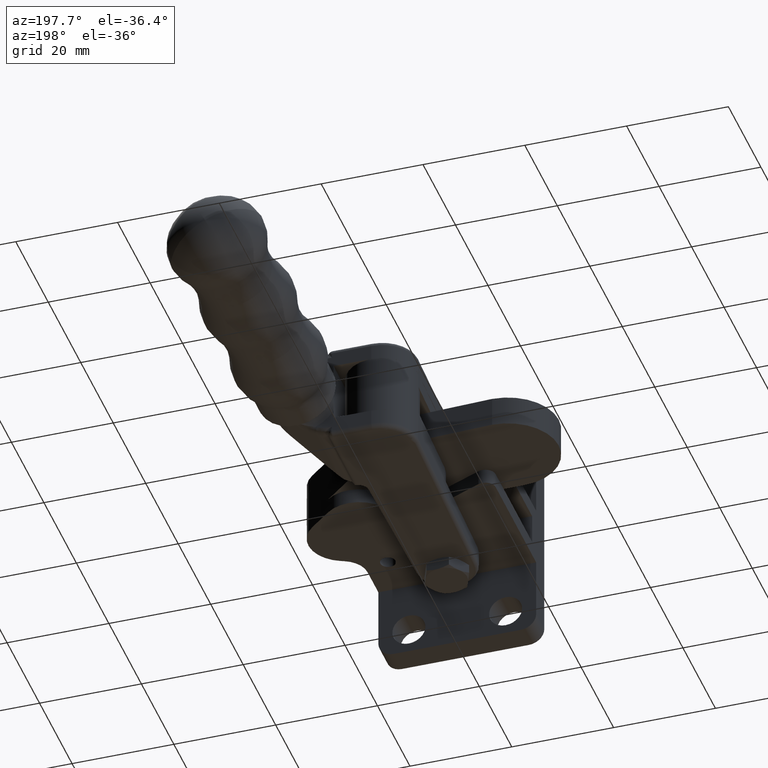
[diagram: clean part render]
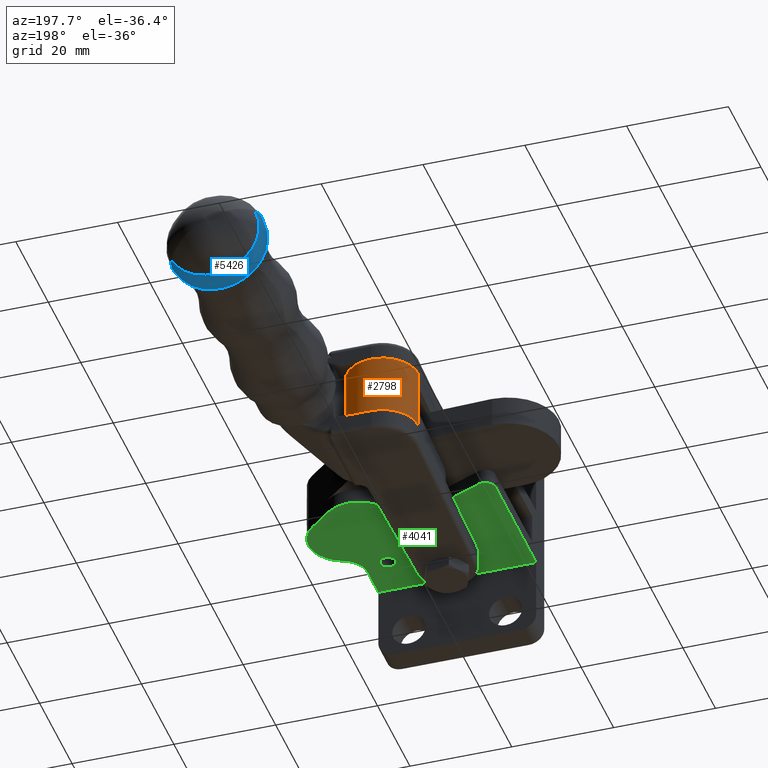
[diagram: same view with three faces highlighted in distinct colors, each labeled with its STEP entity id]
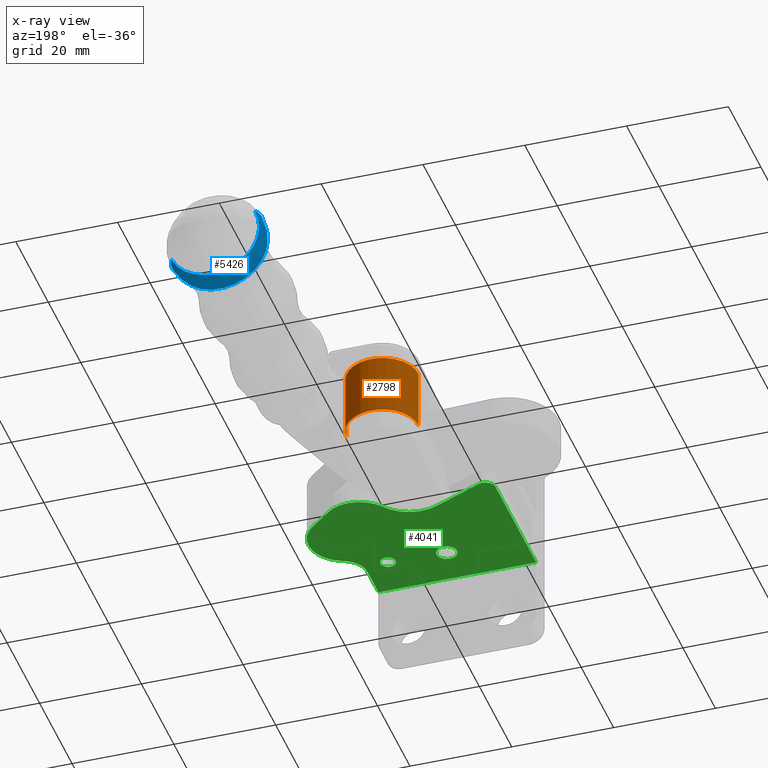
[diagram: x-ray of the same camera — body ghosted, the three highlighted faces saturated]
A machine part, auxiliary view with three faces highlighted in distinct colors.
The next image is the same camera in x-ray (body ghosted, the three faces saturated) — at least one of them is partly hidden behind the body in this view.
Their STEP definitions:

[orange] entity #2798 — the highlighted cylindrical surface (partial cylindrical patch) has radius 7 mm, axis along (0, 0, -1).
#8 = AXIS2_PLACEMENT_3D ( 'NONE', #5089, #902, #5813 ) ;
#15 = CARTESIAN_POINT ( 'NONE',  ( -7.132921286705149000, 39.76374855933703100, -4.500000000000000900 ) ) ;
#17 = LINE ( 'NONE', #4083, #3736 ) ;
#415 = DIRECTION ( 'NONE',  ( -4.366125978806254100E-022, -1.000783505723065100E-022, 1.000000000000000000 ) ) ;
#473 = VECTOR ( 'NONE', #5986, 1000.000000000000000 ) ;
#529 = VERTEX_POINT ( 'NONE', #5708 ) ;
#567 = VECTOR ( 'NONE', #5771, 1000.000000000000000 ) ;
#602 = EDGE_CURVE ( 'NONE', #1839, #6641, #4299, .T. ) ;
#673 = CIRCLE ( 'NONE', #3179, 6.999999999999999100 ) ;
#902 = DIRECTION ( 'NONE',  ( -8.764646601570541500E-022, 1.711275539145676600E-021, 1.000000000000000000 ) ) ;
#924 = VERTEX_POINT ( 'NONE', #4396 ) ;
#942 = ORIENTED_EDGE ( 'NONE', *, *, #1591, .F. ) ;
#1083 = CARTESIAN_POINT ( 'NONE',  ( -7.132921286705143700, 39.76374855933703100, -3.000000000000000000 ) ) ;
#1384 = CARTESIAN_POINT ( 'NONE',  ( -7.132921286705149900, 39.76374855933703100, 3.000000000000000000 ) ) ;
#1488 = EDGE_CURVE ( 'NONE', #924, #8030, #2526, .T. ) ;
#1547 = EDGE_CURVE ( 'NONE', #5807, #7323, #3945, .T. ) ;
#1591 = EDGE_CURVE ( 'NONE', #2927, #529, #7407, .T. ) ;
#1839 = VERTEX_POINT ( 'NONE', #8703 ) ;
#1879 = AXIS2_PLACEMENT_3D ( 'NONE', #8569, #7123, #2313 ) ;
#2044 = CARTESIAN_POINT ( 'NONE',  ( -0.1369012826165858200, 39.99976572479905500, -6.000000000000000000 ) ) ;
#2303 = VECTOR ( 'NONE', #415, 1000.000000000000000 ) ;
#2313 = DIRECTION ( 'NONE',  ( -0.9994314291555083100, -0.03371673792314630600, 0.0000000000000000000 ) ) ;
#2464 = EDGE_LOOP ( 'NONE', ( #942, #3294, #4874, #6507, #3534, #4002, #8714, #5733 ) ) ;
#2526 = LINE ( 'NONE', #15, #6248 ) ;
#2748 = DIRECTION ( 'NONE',  ( -0.9994314291555083100, -0.03371673792314630600, 0.0000000000000000000 ) ) ;
#2798 = ADVANCED_FACE ( 'NONE', ( #6002 ), #8601, .T. ) ;
#2816 = DIRECTION ( 'NONE',  ( -8.764646601570541500E-022, 1.711275539145676600E-021, 1.000000000000000000 ) ) ;
#2927 = VERTEX_POINT ( 'NONE', #6775 ) ;
#3179 = AXIS2_PLACEMENT_3D ( 'NONE', #2044, #6905, #2748 ) ;
#3204 = CARTESIAN_POINT ( 'NONE',  ( 6.859118721568795400, 40.23578288739126700, 4.500000000000000000 ) ) ;
#3294 = ORIENTED_EDGE ( 'NONE', *, *, #6552, .T. ) ;
#3309 = CARTESIAN_POINT ( 'NONE',  ( 6.859118721471973300, 40.23578289026108500, -3.000000000000000000 ) ) ;
#3438 = CIRCLE ( 'NONE', #8, 7.000000000000000900 ) ;
#3534 = ORIENTED_EDGE ( 'NONE', *, *, #1488, .F. ) ;
#3736 = VECTOR ( 'NONE', #8967, 1000.000000000000000 ) ;
#3945 = LINE ( 'NONE', #4623, #2303 ) ;
#4002 = ORIENTED_EDGE ( 'NONE', *, *, #5181, .F. ) ;
#4083 = CARTESIAN_POINT ( 'NONE',  ( 6.859118721471972400, 40.23578289026108500, -3.000000000000000000 ) ) ;
#4161 = DIRECTION ( 'NONE',  ( 4.366125978806254100E-022, 1.000783505723065100E-022, -1.000000000000000000 ) ) ;
#4299 = LINE ( 'NONE', #4390, #567 ) ;
#4390 = CARTESIAN_POINT ( 'NONE',  ( -7.132921286705149900, 39.76374855933703100, 4.500000000000000000 ) ) ;
#4396 = CARTESIAN_POINT ( 'NONE',  ( -7.132921286705149000, 39.76374855933703100, -3.000000000000000000 ) ) ;
#4623 = CARTESIAN_POINT ( 'NONE',  ( 6.859118721568794500, 40.23578288739126700, -4.500000000000000900 ) ) ;
#4874 = ORIENTED_EDGE ( 'NONE', *, *, #1547, .F. ) ;
#5089 = CARTESIAN_POINT ( 'NONE',  ( -0.1369012826165859300, 39.99976572479905500, 6.000000000000000000 ) ) ;
#5126 = EDGE_CURVE ( 'NONE', #529, #1839, #3438, .T. ) ;
#5181 = EDGE_CURVE ( 'NONE', #6641, #924, #5861, .T. ) ;
#5371 = VECTOR ( 'NONE', #2816, 1000.000000000000000 ) ;
#5708 = CARTESIAN_POINT ( 'NONE',  ( 6.859118721520391500, 40.23578288882617900, 6.000000000000000000 ) ) ;
#5733 = ORIENTED_EDGE ( 'NONE', *, *, #5126, .F. ) ;
#5771 = DIRECTION ( 'NONE',  ( 8.764646601570541500E-022, -1.711275539145676600E-021, -1.000000000000000000 ) ) ;
#5807 = VERTEX_POINT ( 'NONE', #8700 ) ;
#5813 = DIRECTION ( 'NONE',  ( -0.9994314291555082000, -0.03371673792314629900, 0.0000000000000000000 ) ) ;
#5861 = LINE ( 'NONE', #1083, #473 ) ;
#5986 = DIRECTION ( 'NONE',  ( 4.366125978806254100E-022, 1.000783505723065100E-022, -1.000000000000000000 ) ) ;
#6002 = FACE_OUTER_BOUND ( 'NONE', #2464, .T. ) ;
#6049 = EDGE_CURVE ( 'NONE', #5807, #8030, #673, .T. ) ;
#6248 = VECTOR ( 'NONE', #4161, 1000.000000000000000 ) ;
#6507 = ORIENTED_EDGE ( 'NONE', *, *, #6049, .T. ) ;
#6552 = EDGE_CURVE ( 'NONE', #2927, #7323, #17, .T. ) ;
#6641 = VERTEX_POINT ( 'NONE', #1384 ) ;
#6775 = CARTESIAN_POINT ( 'NONE',  ( 6.859118721520380800, 40.23578288882617900, 2.999999999999999100 ) ) ;
#6905 = DIRECTION ( 'NONE',  ( -4.366125978806254100E-022, -1.000783505723065100E-022, 1.000000000000000000 ) ) ;
#7123 = DIRECTION ( 'NONE',  ( 4.366125978806254100E-022, 1.000783505723065100E-022, -1.000000000000000000 ) ) ;
#7323 = VERTEX_POINT ( 'NONE', #3309 ) ;
#7407 = LINE ( 'NONE', #3204, #5371 ) ;
#8030 = VERTEX_POINT ( 'NONE', #8727 ) ;
#8569 = CARTESIAN_POINT ( 'NONE',  ( -0.1369012826165858200, 39.99976572479905500, -3.000000000000000000 ) ) ;
#8601 = CYLINDRICAL_SURFACE ( 'NONE', #1879, 6.999999999999999100 ) ;
#8700 = CARTESIAN_POINT ( 'NONE',  ( 6.859118721520390600, 40.23578288882617200, -6.000000000000000000 ) ) ;
#8703 = CARTESIAN_POINT ( 'NONE',  ( -7.132921286705149900, 39.76374855933703100, 6.000000000000000000 ) ) ;
#8714 = ORIENTED_EDGE ( 'NONE', *, *, #602, .F. ) ;
#8727 = CARTESIAN_POINT ( 'NONE',  ( -7.132921286705149000, 39.76374855933703100, -6.000000000000000000 ) ) ;
#8967 = DIRECTION ( 'NONE',  ( 4.366125978806254100E-022, 1.000783505723065100E-022, -1.000000000000000000 ) ) ;

[blue] entity #5426 — the highlighted toroidal blend (fillet) surface has major radius 4.7149 mm and minor (blend) radius 5 mm.
#101 = DIRECTION ( 'NONE',  ( -0.9044394459772414600, -0.003095491135002418700, 0.4265907951362920000 ) ) ;
#237 = AXIS2_PLACEMENT_3D ( 'NONE', #6943, #2784, #7651 ) ;
#407 = EDGE_CURVE ( 'NONE', #2822, #5552, #1229, .T. ) ;
#441 = AXIS2_PLACEMENT_3D ( 'NONE', #3772, #7199, #1837 ) ;
#588 = AXIS2_PLACEMENT_3D ( 'NONE', #2855, #4289, #101 ) ;
#1019 = EDGE_CURVE ( 'NONE', #5552, #1518, #3515, .T. ) ;
#1148 = AXIS2_PLACEMENT_3D ( 'NONE', #5611, #1417, #6311 ) ;
#1229 = CIRCLE ( 'NONE', #1148, 4.999999999999973400 ) ;
#1336 = CARTESIAN_POINT ( 'NONE',  ( 13.74358511268594900, 96.50798547102671400, 22.72657495178282300 ) ) ;
#1417 = DIRECTION ( 'NONE',  ( 0.4265882966451868300, 0.001460020675164394300, 0.9044447432015879600 ) ) ;
#1432 = ORIENTED_EDGE ( 'NONE', *, *, #5670, .T. ) ;
#1518 = VERTEX_POINT ( 'NONE', #3123 ) ;
#1593 = ORIENTED_EDGE ( 'NONE', *, *, #1019, .F. ) ;
#1837 = DIRECTION ( 'NONE',  ( -0.9044394459772414600, -0.003095491135002114700, 0.4265907951362918900 ) ) ;
#1959 = ORIENTED_EDGE ( 'NONE', *, *, #407, .F. ) ;
#2037 = DIRECTION ( 'NONE',  ( -0.9044394459772412400, -0.003095491135002367500, 0.4265907951362922200 ) ) ;
#2468 = EDGE_LOOP ( 'NONE', ( #1959, #3891, #1432, #1593 ) ) ;
#2784 = DIRECTION ( 'NONE',  ( -0.4265882966451869400, -0.001460020675164394700, -0.9044447432015879600 ) ) ;
#2822 = VERTEX_POINT ( 'NONE', #3723 ) ;
#2855 = CARTESIAN_POINT ( 'NONE',  ( 13.73707456712001500, 98.41023424766795800, 22.72657495178282300 ) ) ;
#3123 = CARTESIAN_POINT ( 'NONE',  ( 5.542717527440721900, 100.8723113742877900, 26.58753180337485800 ) ) ;
#3152 = AXIS2_PLACEMENT_3D ( 'NONE', #1336, #6229, #2037 ) ;
#3201 = CIRCLE ( 'NONE', #237, 4.999999999999971600 ) ;
#3515 = CIRCLE ( 'NONE', #441, 9.050727056495613700 ) ;
#3707 = CARTESIAN_POINT ( 'NONE',  ( 21.91438665677705400, 100.9283442650252000, 18.86561810019078700 ) ) ;
#3723 = CARTESIAN_POINT ( 'NONE',  ( 22.19006134583334600, 96.53689397608805200, 18.74268301913396000 ) ) ;
#3772 = CARTESIAN_POINT ( 'NONE',  ( 13.72855209210889000, 100.9003278196565000, 22.72657495178282300 ) ) ;
#3891 = ORIENTED_EDGE ( 'NONE', *, *, #8364, .T. ) ;
#4289 = DIRECTION ( 'NONE',  ( -0.003422532065413858600, 0.9999941431199791400, -4.519185069842600200E-017 ) ) ;
#4485 = CIRCLE ( 'NONE', #3152, 9.338907398074619300 ) ;
#4515 = VERTEX_POINT ( 'NONE', #5339 ) ;
#4647 = TOROIDAL_SURFACE ( 'NONE', #588, 4.714904023880018600, 4.999999999999971600 ) ;
#5339 = CARTESIAN_POINT ( 'NONE',  ( 5.297108879538552800, 96.47907696596536200, 26.71046688443168900 ) ) ;
#5426 = ADVANCED_FACE ( 'NONE', ( #7126 ), #4647, .T. ) ;
#5552 = VERTEX_POINT ( 'NONE', #3707 ) ;
#5611 = CARTESIAN_POINT ( 'NONE',  ( 18.00141975031392500, 98.42482919127626000, 20.71524029524454500 ) ) ;
#5670 = EDGE_CURVE ( 'NONE', #4515, #1518, #3201, .T. ) ;
#6229 = DIRECTION ( 'NONE',  ( -0.003422532065413858600, 0.9999941431199791400, -4.519185069842600200E-017 ) ) ;
#6311 = DIRECTION ( 'NONE',  ( 0.9044457071876378400, 0.0000000000000000000, -0.4265887513165972900 ) ) ;
#6943 = CARTESIAN_POINT ( 'NONE',  ( 9.472729383926104400, 98.39563930405964200, 24.73790960832110000 ) ) ;
#7126 = FACE_OUTER_BOUND ( 'NONE', #2468, .T. ) ;
#7199 = DIRECTION ( 'NONE',  ( -0.003422532065413858600, 0.9999941431199791400, -4.519185069842600200E-017 ) ) ;
#7651 = DIRECTION ( 'NONE',  ( -0.9044457071876378400, 0.0000000000000000000, 0.4265887513165974000 ) ) ;
#8364 = EDGE_CURVE ( 'NONE', #2822, #4515, #4485, .T. ) ;

[green] entity #4041 — the highlighted planar face has unit normal (0, 0, 1).
#173 = DIRECTION ( 'NONE',  ( -0.9230769232100591900, -0.3846153842958580600, 0.0000000000000000000 ) ) ;
#215 = CARTESIAN_POINT ( 'NONE',  ( -14.99999999999994000, -7.999999998202009800, -6.000000003999997700 ) ) ;
#216 = LINE ( 'NONE', #8545, #2517 ) ;
#224 = CARTESIAN_POINT ( 'NONE',  ( -2.720337220968156000, 14.66351940551041200, -6.000000000000001800 ) ) ;
#263 = DIRECTION ( 'NONE',  ( -1.000000000000000000, -3.469446951953615000E-015, 0.0000000000000000000 ) ) ;
#421 = VERTEX_POINT ( 'NONE', #9052 ) ;
#486 = DIRECTION ( 'NONE',  ( -1.000000000000000000, 0.0000000000000000000, 0.0000000000000000000 ) ) ;
#605 = VERTEX_POINT ( 'NONE', #2974 ) ;
#624 = VERTEX_POINT ( 'NONE', #215 ) ;
#749 = CIRCLE ( 'NONE', #1930, 2.000000000000000400 ) ;
#799 = CARTESIAN_POINT ( 'NONE',  ( 2.000000000000060400, -9.887923813067800400E-014, -6.000000000000000000 ) ) ;
#806 = CARTESIAN_POINT ( 'NONE',  ( 11.40000000000005900, 0.4999999999998998600, -6.000000000000001800 ) ) ;
#927 = CARTESIAN_POINT ( 'NONE',  ( 21.00000000000006000, -1.333333333000098700, -6.000000000000001800 ) ) ;
#1158 = AXIS2_PLACEMENT_3D ( 'NONE', #8534, #1978, #1755 ) ;
#1162 = ORIENTED_EDGE ( 'NONE', *, *, #5292, .T. ) ;
#1515 = CARTESIAN_POINT ( 'NONE',  ( 16.00000000000006000, -1.333333333000098700, -6.000000002999999400 ) ) ;
#1516 = ORIENTED_EDGE ( 'NONE', *, *, #7308, .F. ) ;
#1524 = DIRECTION ( 'NONE',  ( -1.000000000000000000, 0.0000000000000000000, 0.0000000000000000000 ) ) ;
#1619 = CIRCLE ( 'NONE', #8412, 2.000000000000000400 ) ;
#1631 = DIRECTION ( 'NONE',  ( -1.000000000000000000, 0.0000000000000000000, 0.0000000000000000000 ) ) ;
#1672 = EDGE_CURVE ( 'NONE', #7253, #7929, #4272, .T. ) ;
#1686 = CARTESIAN_POINT ( 'NONE',  ( 12.90000000000005900, 0.4999999999999000200, -6.000000000000001800 ) ) ;
#1737 = CARTESIAN_POINT ( 'NONE',  ( 17.32837569400946600, 18.86231110199201300, -6.000000000000000900 ) ) ;
#1755 = DIRECTION ( 'NONE',  ( -1.000000000000000000, 0.0000000000000000000, 0.0000000000000000000 ) ) ;
#1930 = AXIS2_PLACEMENT_3D ( 'NONE', #7017, #6774, #2793 ) ;
#1978 = DIRECTION ( 'NONE',  ( -0.0000000000000000000, -0.0000000000000000000, 1.000000000000000000 ) ) ;
#2010 = EDGE_LOOP ( 'NONE', ( #8246, #2805 ) ) ;
#2014 = EDGE_CURVE ( 'NONE', #2126, #2664, #5581, .T. ) ;
#2026 = CARTESIAN_POINT ( 'NONE',  ( 11.40000000000005900, 0.4999999999998998600, -6.000000000000001800 ) ) ;
#2063 = DIRECTION ( 'NONE',  ( 0.0000000000000000000, 1.000000000000000000, 0.0000000000000000000 ) ) ;
#2100 = CARTESIAN_POINT ( 'NONE',  ( 21.49951326900458100, 15.36231110099194200, -6.000000000000001800 ) ) ;
#2126 = VERTEX_POINT ( 'NONE', #7896 ) ;
#2186 = CIRCLE ( 'NONE', #9037, 1.499999999999999600 ) ;
#2190 = EDGE_CURVE ( 'NONE', #605, #5455, #749, .T. ) ;
#2517 = VECTOR ( 'NONE', #173, 1000.000000000000100 ) ;
#2565 = CARTESIAN_POINT ( 'NONE',  ( 7.061232448020372300, 17.46666666551794500, -6.000000000000001800 ) ) ;
#2585 = ORIENTED_EDGE ( 'NONE', *, *, #8158, .T. ) ;
#2664 = VERTEX_POINT ( 'NONE', #2100 ) ;
#2733 = DIRECTION ( 'NONE',  ( -1.000000000000000000, 0.0000000000000000000, 0.0000000000000000000 ) ) ;
#2793 = DIRECTION ( 'NONE',  ( 1.000000000000000000, 0.0000000000000000000, 0.0000000000000000000 ) ) ;
#2796 = DIRECTION ( 'NONE',  ( -0.7660444431129269600, 0.6427876096937507100, -0.0000000000000000000 ) ) ;
#2802 = VERTEX_POINT ( 'NONE', #7891 ) ;
#2805 = ORIENTED_EDGE ( 'NONE', *, *, #8928, .F. ) ;
#2974 = CARTESIAN_POINT ( 'NONE',  ( -1.999999999999940700, -9.863430877084853400E-014, -6.000000000000000000 ) ) ;
#3087 = DIRECTION ( 'NONE',  ( 0.0000000000000000000, 0.0000000000000000000, -1.000000000000000000 ) ) ;
#3222 = EDGE_CURVE ( 'NONE', #5132, #7929, #4346, .T. ) ;
#3298 = CARTESIAN_POINT ( 'NONE',  ( -14.99999999999994000, 20.67099999999989600, -6.000000000000000000 ) ) ;
#3417 = CARTESIAN_POINT ( 'NONE',  ( 19.07692307757637500, 3.282051282448362500, -6.000000000000001800 ) ) ;
#3483 = ORIENTED_EDGE ( 'NONE', *, *, #2014, .F. ) ;
#3551 = ORIENTED_EDGE ( 'NONE', *, *, #3222, .F. ) ;
#3656 = EDGE_CURVE ( 'NONE', #3673, #2802, #8481, .T. ) ;
#3673 = VERTEX_POINT ( 'NONE', #1515 ) ;
#3783 = EDGE_CURVE ( 'NONE', #7985, #4015, #8811, .T. ) ;
#3895 = CARTESIAN_POINT ( 'NONE',  ( 5.995638013844839500E-014, -9.887923813067800400E-014, -6.000000000000000000 ) ) ;
#4004 = DIRECTION ( 'NONE',  ( 0.0000000000000000000, -1.000000000000000000, 0.0000000000000000000 ) ) ;
#4015 = VERTEX_POINT ( 'NONE', #2565 ) ;
#4041 = ADVANCED_FACE ( 'NONE', ( #7045, #5209, #7252 ), #8859, .F. ) ;
#4101 = ORIENTED_EDGE ( 'NONE', *, *, #7904, .T. ) ;
#4272 = CIRCLE ( 'NONE', #8056, 2.000000000000000000 ) ;
#4287 = DIRECTION ( 'NONE',  ( 0.0000000000000000000, -1.000000000000000000, 0.0000000000000000000 ) ) ;
#4346 = LINE ( 'NONE', #6481, #7597 ) ;
#4473 = DIRECTION ( 'NONE',  ( -0.0000000000000000000, -0.0000000000000000000, 1.000000000000000000 ) ) ;
#4501 = ORIENTED_EDGE ( 'NONE', *, *, #7023, .F. ) ;
#4536 = VECTOR ( 'NONE', #2063, 1000.000000000000000 ) ;
#4605 = DIRECTION ( 'NONE',  ( 1.000000000000000000, 0.0000000000000000000, 0.0000000000000000000 ) ) ;
#4693 = DIRECTION ( 'NONE',  ( 0.0000000000000000000, 0.0000000000000000000, -1.000000000000000000 ) ) ;
#4718 = LINE ( 'NONE', #6285, #7973 ) ;
#4786 = VECTOR ( 'NONE', #4287, 1000.000000000000000 ) ;
#4815 = CIRCLE ( 'NONE', #6512, 5.000000000000000900 ) ;
#4845 = CARTESIAN_POINT ( 'NONE',  ( -14.99999999999994000, 2.976180891999901300, -6.000000005999996900 ) ) ;
#4976 = AXIS2_PLACEMENT_3D ( 'NONE', #2026, #6890, #2733 ) ;
#5132 = VERTEX_POINT ( 'NONE', #224 ) ;
#5136 = VECTOR ( 'NONE', #5374, 1000.000000000000000 ) ;
#5209 = FACE_BOUND ( 'NONE', #5792, .T. ) ;
#5292 = EDGE_CURVE ( 'NONE', #624, #7253, #8454, .T. ) ;
#5374 = DIRECTION ( 'NONE',  ( -1.000000000000000000, -0.0000000000000000000, -0.0000000000000000000 ) ) ;
#5455 = VERTEX_POINT ( 'NONE', #799 ) ;
#5581 = CIRCLE ( 'NONE', #1158, 7.000000000000000900 ) ;
#5712 = DIRECTION ( 'NONE',  ( 0.0000000000000000000, 0.0000000000000000000, -1.000000000000000000 ) ) ;
#5792 = EDGE_LOOP ( 'NONE', ( #6771, #8371 ) ) ;
#5836 = DIRECTION ( 'NONE',  ( 0.0000000000000000000, 0.0000000000000000000, -1.000000000000000000 ) ) ;
#5972 = DIRECTION ( 'NONE',  ( -1.000000000000000000, 0.0000000000000000000, 0.0000000000000000000 ) ) ;
#6076 = CARTESIAN_POINT ( 'NONE',  ( 0.5000000000000599500, -8.000000000000101300, -6.000000000000000000 ) ) ;
#6285 = CARTESIAN_POINT ( 'NONE',  ( 17.32837569400006200, 18.86231110199990000, -6.000000000000000000 ) ) ;
#6481 = CARTESIAN_POINT ( 'NONE',  ( -12.20250186199994100, 18.78648193299989400, -5.999999999999999100 ) ) ;
#6512 = AXIS2_PLACEMENT_3D ( 'NONE', #927, #5836, #1631 ) ;
#6746 = ORIENTED_EDGE ( 'NONE', *, *, #7184, .F. ) ;
#6771 = ORIENTED_EDGE ( 'NONE', *, *, #8672, .F. ) ;
#6774 = DIRECTION ( 'NONE',  ( 0.0000000000000000000, -0.0000000000000000000, -1.000000000000000000 ) ) ;
#6890 = DIRECTION ( 'NONE',  ( 0.0000000000000000000, 0.0000000000000000000, -1.000000000000000000 ) ) ;
#7009 = CARTESIAN_POINT ( 'NONE',  ( 16.00000000000006000, -6.166666666500099800, -6.000000005999996900 ) ) ;
#7017 = CARTESIAN_POINT ( 'NONE',  ( 5.995638013844839500E-014, -9.887923813067800400E-014, -6.000000000000000000 ) ) ;
#7023 = EDGE_CURVE ( 'NONE', #2664, #7985, #4718, .T. ) ;
#7037 = ORIENTED_EDGE ( 'NONE', *, *, #3656, .T. ) ;
#7045 = FACE_BOUND ( 'NONE', #2010, .T. ) ;
#7086 = EDGE_CURVE ( 'NONE', #421, #7641, #2186, .T. ) ;
#7098 = CARTESIAN_POINT ( 'NONE',  ( -12.99999999999994000, 16.95236178399989800, -6.000000000000001800 ) ) ;
#7164 = DIRECTION ( 'NONE',  ( -0.9170600743765872100, 0.3987490689448796000, -0.0000000000000000000 ) ) ;
#7184 = EDGE_CURVE ( 'NONE', #3673, #7848, #4815, .T. ) ;
#7234 = ORIENTED_EDGE ( 'NONE', *, *, #3783, .F. ) ;
#7252 = FACE_OUTER_BOUND ( 'NONE', #7365, .T. ) ;
#7253 = VERTEX_POINT ( 'NONE', #7306 ) ;
#7306 = CARTESIAN_POINT ( 'NONE',  ( -14.99999999999994000, 16.95236178399989800, -6.000000002999999400 ) ) ;
#7308 = EDGE_CURVE ( 'NONE', #4015, #5132, #7988, .T. ) ;
#7365 = EDGE_LOOP ( 'NONE', ( #1162, #8333, #3551, #1516, #7234, #4501, #3483, #4101, #6746, #7037, #2585 ) ) ;
#7597 = VECTOR ( 'NONE', #7164, 1000.000000000000100 ) ;
#7641 = VERTEX_POINT ( 'NONE', #1686 ) ;
#7739 = AXIS2_PLACEMENT_3D ( 'NONE', #8870, #4693, #486 ) ;
#7848 = VERTEX_POINT ( 'NONE', #3417 ) ;
#7891 = CARTESIAN_POINT ( 'NONE',  ( 16.00000000000006000, -7.999999997948377100, -6.000000002999998500 ) ) ;
#7895 = CARTESIAN_POINT ( 'NONE',  ( -12.20250186208835600, 18.78648193289096100, -6.000000000000001800 ) ) ;
#7896 = CARTESIAN_POINT ( 'NONE',  ( 19.69230769023066000, 3.538461537429314200, -6.000000000000001800 ) ) ;
#7904 = EDGE_CURVE ( 'NONE', #2126, #7848, #216, .T. ) ;
#7929 = VERTEX_POINT ( 'NONE', #7895 ) ;
#7973 = VECTOR ( 'NONE', #2796, 1000.000000000000000 ) ;
#7985 = VERTEX_POINT ( 'NONE', #1737 ) ;
#7988 = CIRCLE ( 'NONE', #7739, 8.000000000000000000 ) ;
#8056 = AXIS2_PLACEMENT_3D ( 'NONE', #7098, #3087, #5972 ) ;
#8069 = AXIS2_PLACEMENT_3D ( 'NONE', #3298, #8181, #4004 ) ;
#8158 = EDGE_CURVE ( 'NONE', #2802, #624, #8850, .T. ) ;
#8166 = CIRCLE ( 'NONE', #4976, 1.499999999999999600 ) ;
#8181 = DIRECTION ( 'NONE',  ( -0.0000000000000000000, 0.0000000000000000000, 1.000000000000000000 ) ) ;
#8246 = ORIENTED_EDGE ( 'NONE', *, *, #7086, .F. ) ;
#8333 = ORIENTED_EDGE ( 'NONE', *, *, #1672, .T. ) ;
#8371 = ORIENTED_EDGE ( 'NONE', *, *, #2190, .F. ) ;
#8412 = AXIS2_PLACEMENT_3D ( 'NONE', #3895, #8781, #4605 ) ;
#8454 = LINE ( 'NONE', #4845, #4536 ) ;
#8481 = LINE ( 'NONE', #7009, #4786 ) ;
#8534 = CARTESIAN_POINT ( 'NONE',  ( 17.00000000000006000, 9.999999999999898700, -6.000000000000001800 ) ) ;
#8545 = CARTESIAN_POINT ( 'NONE',  ( 19.38461538450006200, 3.410256409999897100, -6.000000000000000000 ) ) ;
#8584 = AXIS2_PLACEMENT_3D ( 'NONE', #8640, #4473, #263 ) ;
#8640 = CARTESIAN_POINT ( 'NONE',  ( 12.82886242600005700, 13.49999999999989900, -6.000000000000001800 ) ) ;
#8672 = EDGE_CURVE ( 'NONE', #5455, #605, #1619, .T. ) ;
#8781 = DIRECTION ( 'NONE',  ( 0.0000000000000000000, -0.0000000000000000000, -1.000000000000000000 ) ) ;
#8811 = CIRCLE ( 'NONE', #8584, 6.999999999999998200 ) ;
#8850 = LINE ( 'NONE', #6076, #5136 ) ;
#8859 = PLANE ( 'NONE',  #8069 ) ;
#8870 = CARTESIAN_POINT ( 'NONE',  ( 0.4696553320000601600, 21.99999999999990100, -6.000000000000001800 ) ) ;
#8928 = EDGE_CURVE ( 'NONE', #7641, #421, #8166, .T. ) ;
#9037 = AXIS2_PLACEMENT_3D ( 'NONE', #806, #5712, #1524 ) ;
#9052 = CARTESIAN_POINT ( 'NONE',  ( 9.900000000000059000, 0.4999999999998998600, -6.000000000000001800 ) ) ;